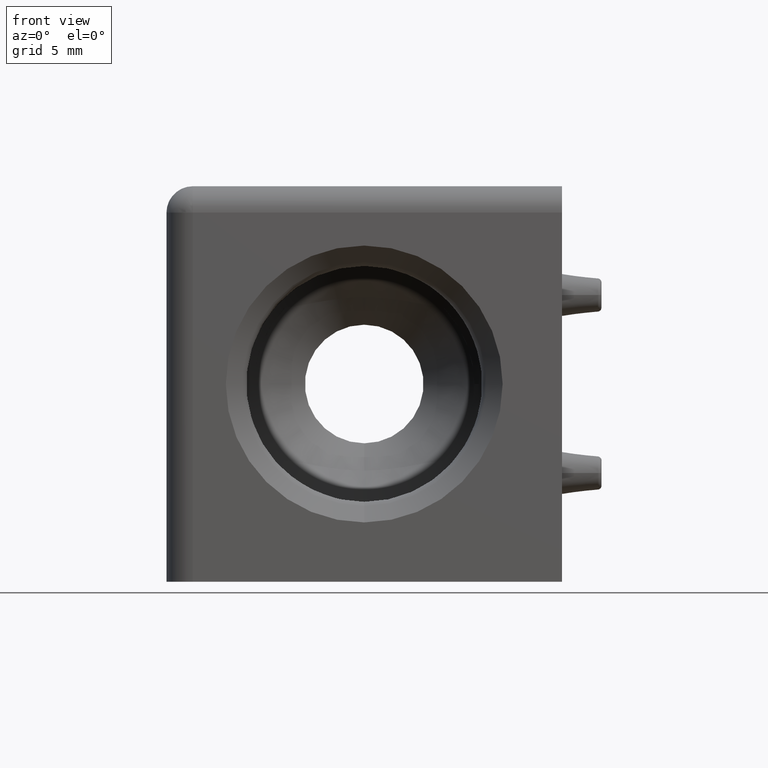
[diagram: clean part render]
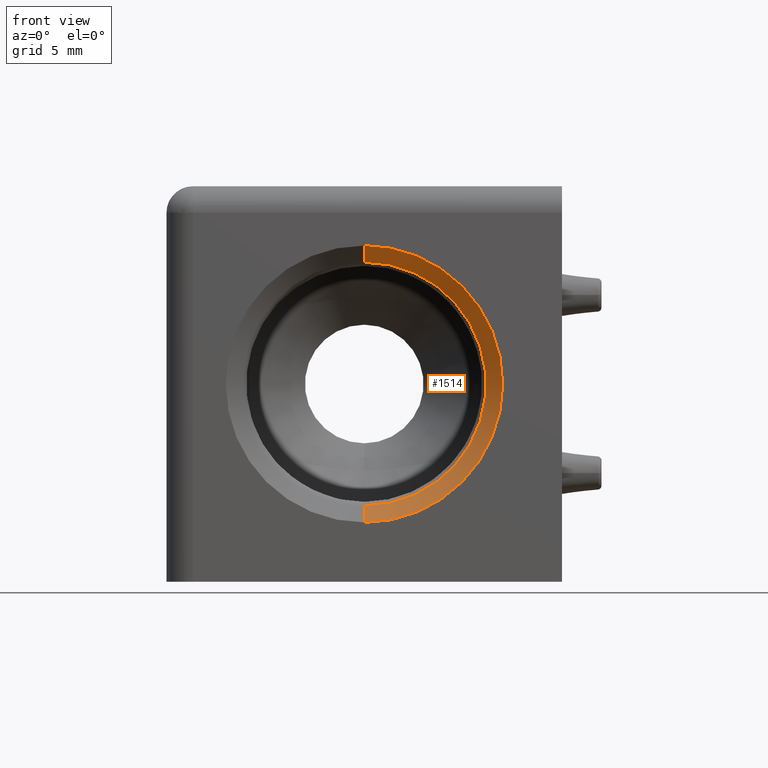
[diagram: same view with one face highlighted and labeled with its STEP entity id]
A machine part, front view. The second image highlights one B-rep face of the part: STEP entity #1514.
In plain terms, the highlighted conical surface has half-angle 45 deg.
Its self-contained STEP definition (entity closure, byte-faithful):
#88=LINE('',#2649,#156);
#89=LINE('',#2652,#157);
#156=VECTOR('',#1962,1.77940323450475);
#157=VECTOR('',#1965,1.77940323450475);
#357=FACE_OUTER_BOUND('',#472,.T.);
#472=EDGE_LOOP('',(#1364,#1365,#1366,#1367));
#519=CIRCLE('',#1603,9.24177190641642);
#580=CIRCLE('',#1688,10.5);
#669=VERTEX_POINT('',#2628);
#670=VERTEX_POINT('',#2630);
#675=VERTEX_POINT('',#2648);
#676=VERTEX_POINT('',#2650);
#833=EDGE_CURVE('',#670,#669,#519,.T.);
#843=EDGE_CURVE('',#670,#675,#88,.T.);
#845=EDGE_CURVE('',#669,#676,#89,.T.);
#926=EDGE_CURVE('',#675,#676,#580,.T.);
#1364=ORIENTED_EDGE('',*,*,#843,.F.);
#1365=ORIENTED_EDGE('',*,*,#833,.T.);
#1366=ORIENTED_EDGE('',*,*,#845,.T.);
#1367=ORIENTED_EDGE('',*,*,#926,.F.);
#1418=CONICAL_SURFACE('',#1738,8.95966490603929,45.0000000000001);
#1514=ADVANCED_FACE('',(#357),#1418,.F.);
#1603=AXIS2_PLACEMENT_3D('',#2631,#1938,#1939);
#1688=AXIS2_PLACEMENT_3D('',#2802,#2140,#2141);
#1738=AXIS2_PLACEMENT_3D('',#2861,#2247,#2248);
#1938=DIRECTION('center_axis',(0.,1.,0.));
#1939=DIRECTION('ref_axis',(0.,0.,1.));
#1962=DIRECTION('',(8.65956056235495E-17,-0.707106781186546,0.707106781186549));
#1965=DIRECTION('',(0.,-0.707106781186546,-0.707106781186549));
#2140=DIRECTION('center_axis',(0.,1.,0.));
#2141=DIRECTION('ref_axis',(0.,0.,1.));
#2247=DIRECTION('center_axis',(0.,-1.,0.));
#2248=DIRECTION('ref_axis',(0.,0.,-1.));
#2628=CARTESIAN_POINT('',(0.,-13.7417719064164,-9.24177190641642));
#2630=CARTESIAN_POINT('',(1.2088348887345E-15,-13.7417719064164,9.24177190641642));
#2631=CARTESIAN_POINT('Origin',(0.,-13.7417719064164,0.));
#2648=CARTESIAN_POINT('',(1.28587913910472E-15,-15.,10.5));
#2649=CARTESIAN_POINT('',(1.09724249486139E-15,-13.4596649060393,8.95966490603929));
#2650=CARTESIAN_POINT('',(0.,-15.,-10.5));
#2652=CARTESIAN_POINT('',(0.,-13.4596649060393,-8.95966490603929));
#2802=CARTESIAN_POINT('Origin',(0.,-15.,0.));
#2861=CARTESIAN_POINT('Origin',(0.,-13.4596649060393,0.));